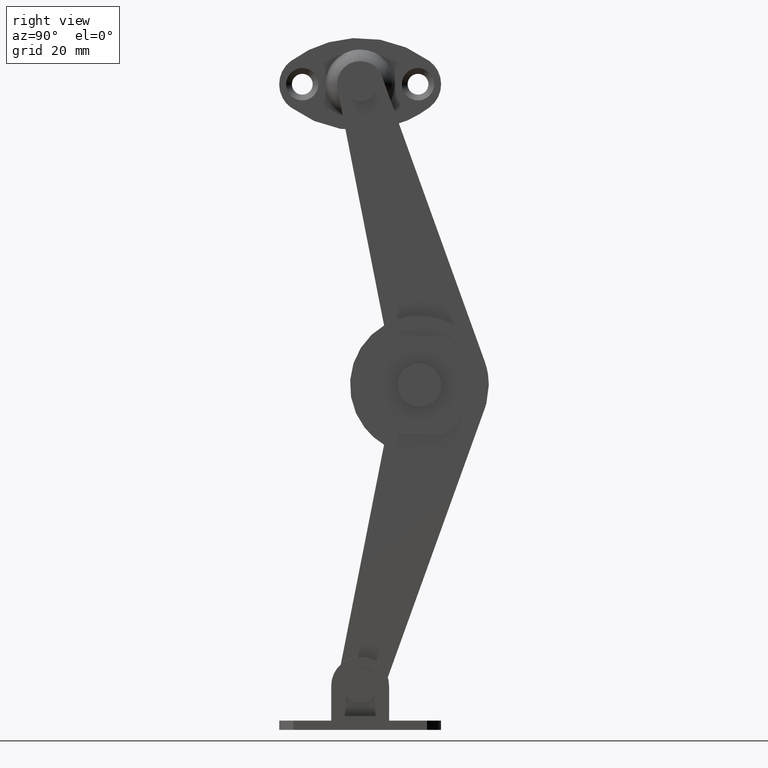
[diagram: clean part render]
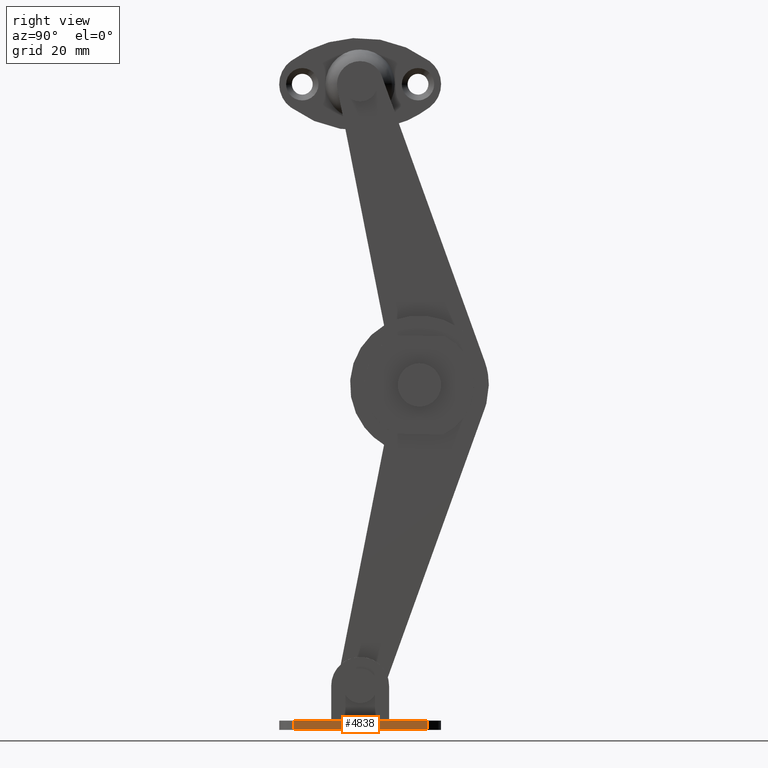
[diagram: same view with one face highlighted and labeled with its STEP entity id]
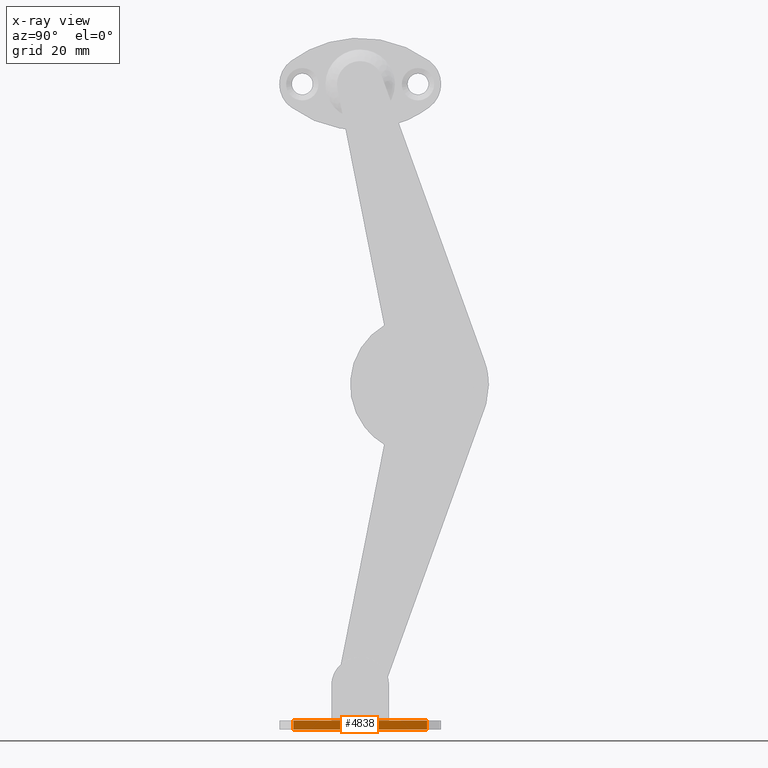
[diagram: x-ray of the same camera — body ghosted, the highlighted face saturated]
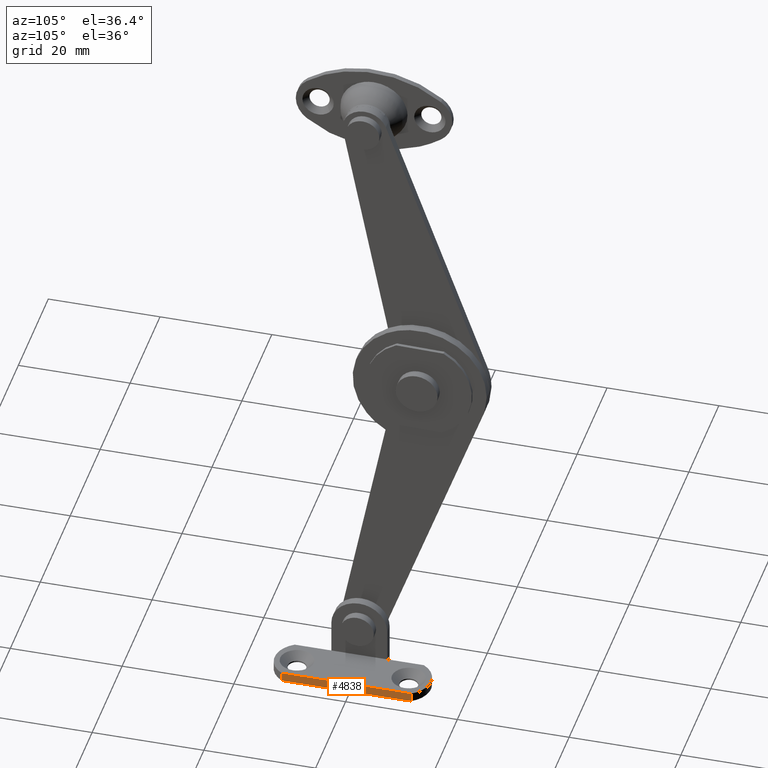
[diagram: same view with one face highlighted and labeled with its STEP entity id]
A machine part, right view. The second image highlights one B-rep face of the part: STEP entity #4838.
The next image is the same camera in x-ray: the body ghosted, the highlighted face saturated — about 0% of this face is hidden behind the body in this view.
A second angle (auxiliary view) of the same face is appended — the face is thin or edge-on in the first view.
In plain terms, the highlighted face is a freeform B-spline surface patch.
Its self-contained STEP definition (entity closure, byte-faithful):
#4631=CARTESIAN_POINT('',(19.400003051762049,11.551468835985020,-59.599998474121001));
#4632=VERTEX_POINT('',#4631);
#4649=CARTESIAN_POINT('',(19.400003051762049,-11.551468835985240,-59.599998474121001));
#4650=VERTEX_POINT('',#4649);
#4651=CARTESIAN_POINT('',(19.400003051762049,-11.551468835985240,-59.599998474121001));
#4652=CARTESIAN_POINT('',(19.400003051762049,11.551468835985020,-59.599998474121001));
#4653=QUASI_UNIFORM_CURVE('',1,(#4651,#4652),.UNSPECIFIED.,.F.,.U.);
#4654=EDGE_CURVE('',#4650,#4632,#4653,.T.);
#4790=CARTESIAN_POINT('',(19.400003051762049,11.551468835985020,-58.0));
#4791=VERTEX_POINT('',#4790);
#4807=CARTESIAN_POINT('',(19.400003051762049,11.551468835985020,-59.599998474121001));
#4808=CARTESIAN_POINT('',(19.400003051762049,11.551468835985020,-58.0));
#4809=QUASI_UNIFORM_CURVE('',1,(#4807,#4808),.UNSPECIFIED.,.F.,.U.);
#4810=EDGE_CURVE('',#4632,#4791,#4809,.T.);
#4817=CARTESIAN_POINT('',(19.400003051762049,-12.705460527922179,-57.920080079318751));
#4818=CARTESIAN_POINT('',(19.400003051762049,-12.705460527922179,-59.679918437717546));
#4819=CARTESIAN_POINT('',(19.400003051762049,12.705461147591031,-57.920080079318751));
#4820=CARTESIAN_POINT('',(19.400003051762049,12.705461147591031,-59.679918437717546));
#4821=B_SPLINE_SURFACE_WITH_KNOTS('',1,1,((#4817,#4819),(#4818,#4820)),.UNSPECIFIED.,.F.,.F.,.U.,(2,2),(2,2),(0.041708334948495,0.958291687403247),(0.0,25.410921675513212),.UNSPECIFIED.);
#4822=CARTESIAN_POINT('',(19.400003051762049,-11.551468835985240,-58.0));
#4823=VERTEX_POINT('',#4822);
#4824=CARTESIAN_POINT('',(19.400003051762049,-11.551468835985240,-58.0));
#4825=CARTESIAN_POINT('',(19.400003051762049,11.551468835985020,-58.0));
#4826=QUASI_UNIFORM_CURVE('',1,(#4824,#4825),.UNSPECIFIED.,.F.,.U.);
#4827=EDGE_CURVE('',#4823,#4791,#4826,.T.);
#4828=ORIENTED_EDGE('',*,*,#4827,.F.);
#4829=CARTESIAN_POINT('',(19.400003051762049,-11.551468835985240,-59.599998474121001));
#4830=CARTESIAN_POINT('',(19.400003051762049,-11.551468835985240,-58.0));
#4831=QUASI_UNIFORM_CURVE('',1,(#4829,#4830),.UNSPECIFIED.,.F.,.U.);
#4832=EDGE_CURVE('',#4650,#4823,#4831,.T.);
#4833=ORIENTED_EDGE('',*,*,#4832,.F.);
#4834=ORIENTED_EDGE('',*,*,#4654,.T.);
#4835=ORIENTED_EDGE('',*,*,#4810,.T.);
#4836=EDGE_LOOP('',(#4828,#4833,#4834,#4835));
#4837=FACE_OUTER_BOUND('',#4836,.T.);
#4838=ADVANCED_FACE('',(#4837),#4821,.T.);